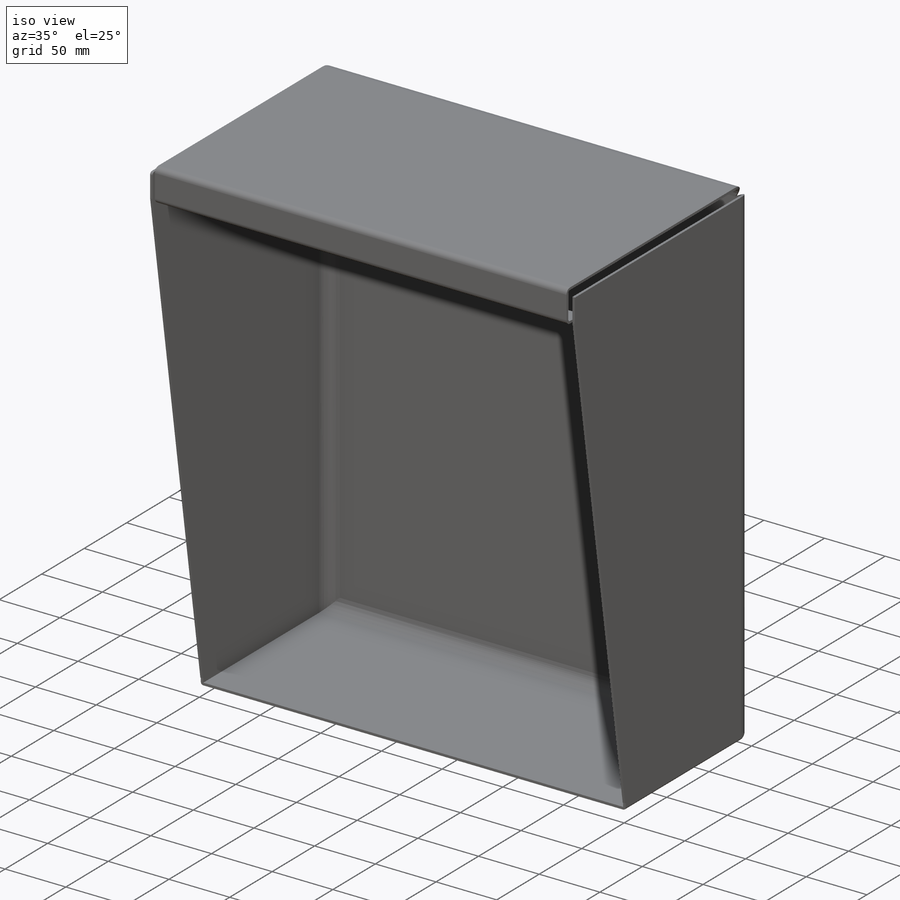
[diagram: iso view]
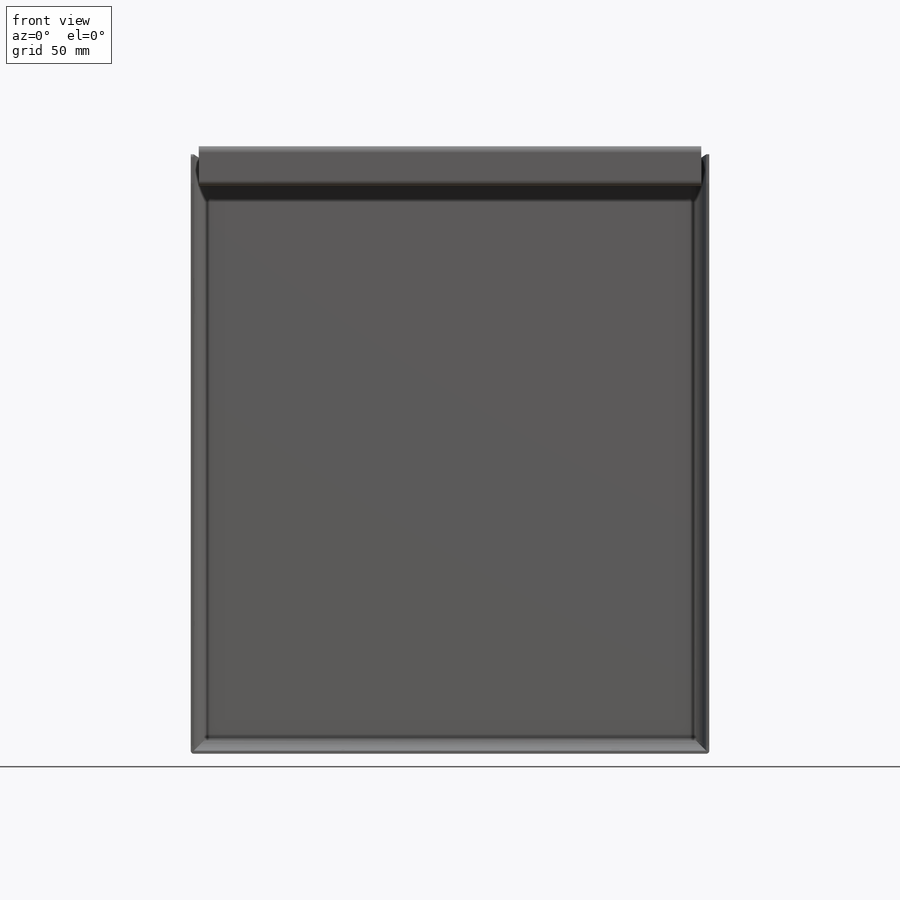
[diagram: front view]
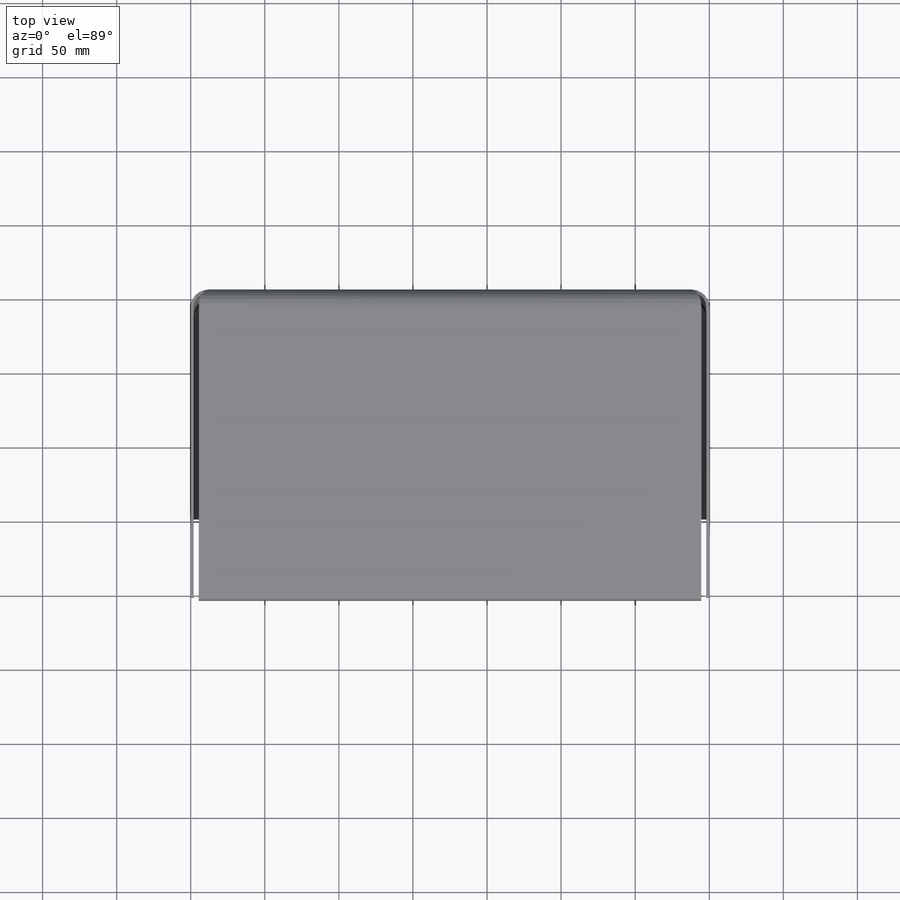
[diagram: top view]
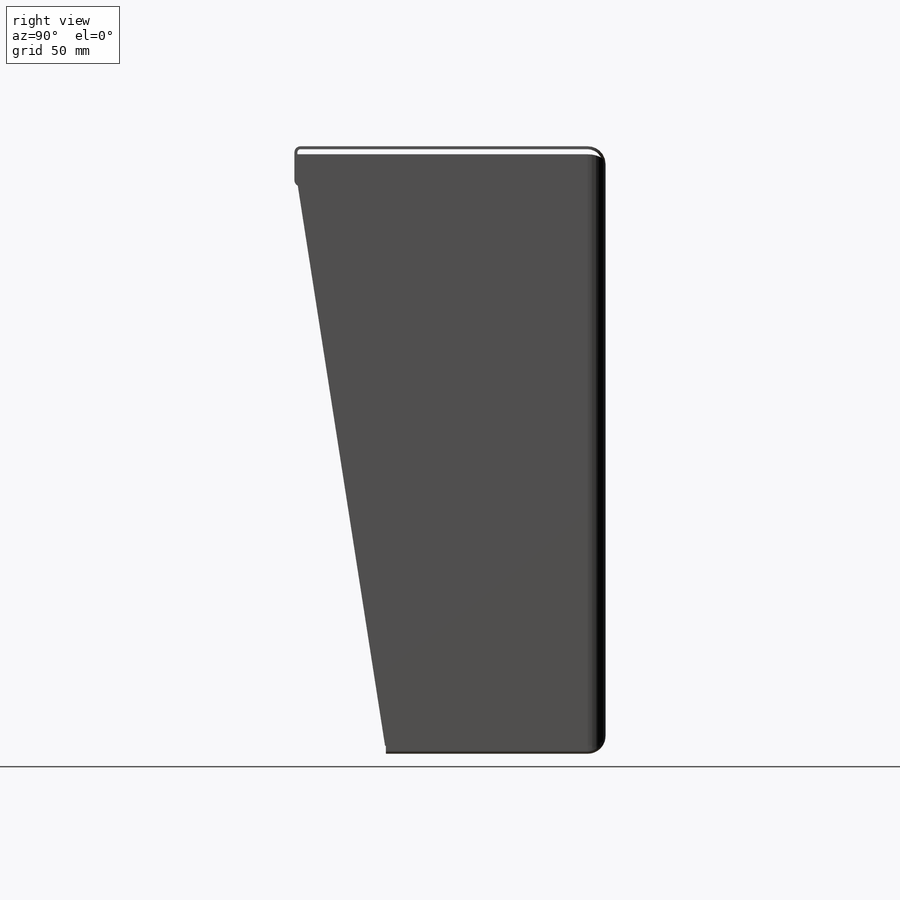
[diagram: right view]
SOLIDWORKS PART (.sldprt)
format: sldprt  version: not decoded by parser v0  size: 513,536 bytes
history: native  units: mm
features: sketch x17, plane x3, fillet x3, sheet_metal_op x3, cut_extrude x2, hole x2, material x1, extrude x1, shell x1 + 3 further entries (+23 scaffold rows collapsed; 3 parser-record rows omitted)
feature tree (62):
  scaffold x23  (default folders/planes/origin — collapsed)
  material  "Material <nicht festgelegt>"
  plane  "Vorne"
  plane  "Oben"
  plane  "Links"
  sketch  "Skizze1"  dims[c1.D1=~77.560771mm c1.D2=~97.818146mm c2.D1=350.0mm c2.D2=410.0mm]
  extrude  "Aufsatz-Linear austragen2"  Depth=208mm
  sketch  "Skizze2"  dims[D1=148.0mm D2=25.0mm]
  cut_extrude  "Schnitt-Linear austragen1"  [1 undecoded]
  shell  "Wandung1"  Thickness=2mm
  fillet  "Verrundung2"  Radius=2mm
  fillet  "Verrundung3"  Radius=0.7366mm
  sketch  "Skizze11"  dims[c1.D1=~113.555132mm c1.D2=~281.184137mm c2.D1=~24.719485mm c2.D2=~9.656049mm c3.D1=250.0mm c3.D2=90.0mm c3.D3=25.5mm]
  cut_extrude  "Schnitt-Linear austragen3"  Depth=5mm
  hole  "Bohrung1"  Diameter=10.4mm Depth=5500mm
  sketch  "Skizze13"  dims[D1=120.0mm D2=140.0mm D3=90.0mm]
  sketch  "Skizze12"  dims[Durchmesser=10.4mm Tiefe=5500.0mm]
  hole  "Ø4.5 (4.5) Durchmesser Bohrung1"  Diameter=4.5mm Depth=10mm
  sketch  "Skizze15"  dims[D1=110.0mm D2=135.0mm]
  sketch  "Skizze14"  dims[c1.D1=25.4mm c1.D2=93.98mm c1.4=25.4mm c1.D4=19.05mm c1.D7=33.02mm c1.D5=25.4mm c1.D3=50.8mm c1.D6=31.75mm c2.D5=58.42mm c2.D7=~8.980256mm c3.D7=90.0deg c3.D6=~2059.488517mm c3.D8=~2059.488517mm c3.D9=~2059.488517mm c3.D3=50.8mm c3.D4=31.75mm c3.D5=58.42mm c4.D6=~2094.395102mm c4.D7=33.02mm c4.D8=~1570.796327mm c4.D9=~2059.488517mm c4.D1=12.7mm c4.D2=93.98mm c4.D3=25.4mm c5.D1=25.4mm c5.D2=93.98mm c5.D3=50.8mm c5.D4=~1431.169987mm c5.D5=~2059.488517mm c5.D6=12.7mm c6.D1=25.4mm c6.D2=93.98mm c6.D3=31.75mm c6.D4=~2094.395102mm c6.D5=~2059.488517mm c6.Bohrerdurchmesser=4.5mm c6.Bohrungstiefe=10.0mm c6.Spitzenwinkel=~2059.488517mm c7.D1=10.0mm c7.D2=0.5 c7.D3=0.0deg c7.D6=~28.64789deg c8.D1=0.0mm c8.D4=~1570.796327mm c8.D5=1.0 c8.D8=0.0deg c8.D9=0.0deg c8.Biegung-Winkel39=0.0 c9.D1=0.0mm c9.D4=~1570.796327mm c9.D5=2.0 c9.D8=0.0deg c9.D9=0.0deg c9.Biegung-Winkel40=0.0 c10.D1=0.0mm c10.D4=~1570.796327mm c10.D5=3.0 c10.D8=0.0deg c10.D9=0.0deg c10.Biegung-Winkel41=0.0 c11.D1=0.0mm c11.D4=~1570.796327mm c11.D5=4.0 c11.D8=0.0deg c11.D9=0.0deg c12.D1=10.0mm]
  sketch  "Skizze61"  dims[c1.Kantenbiegung2=0.0 c1.D1=2.0mm c1.D4=~1570.796327mm c1.D5=5.0 c1.D8=0.0deg c1.D9=0.0deg c2.D1=2.0mm c2.D2=~28.64789deg c2.D3=0.0deg c2.D6=10.0mm c2.D7=23.0mm]
  sketch  "Skizze64"  dims[c1.Kantenbiegung3=0.0 c1.D1=2.0mm c1.D4=~1570.796327mm c1.D5=6.0 c1.D8=0.0deg c1.D9=0.0deg c2.D1=2.0mm c2.D2=~28.64789deg c2.D3=0.0deg c2.D6=10.0mm c2.D7=15.5mm c3.D1=2000.0mm c4.D1=2000.0mm]
  fillet  "Verrundung4"  Radius=2mm
  sketch  "Biegung-Linien3"
  sketch  "Rahmen3"
  sheet_metal_op  "Blech27"
  "Abwicklung27"
  sketch  "Biegung-Linien4"
  sketch  "Rahmen4"
  parser-record x3  (decoder bookkeeping rows leaked as tree rows — omitted from the tree; the rows remain in map.json)
  sheet_metal_op  "Blech30"
  "Abwicklung27"
  sketch  "Biegung-Linien4"
  sketch  "Rahmen4"
  sheet_metal_op  "Blech31"
  "Abwicklung27"
  sketch  "Biegung-Linien4"
  sketch  "Rahmen4"
decode coverage: 17 of 29 modeling features carry decoded parameters; 3 rows unclassified (native names shown)
note: ~ marks probable driven/reference dimensions
note: 1 parameter value undecoded
note: suppression state not decoded; provenance and decode notes live in map.json
